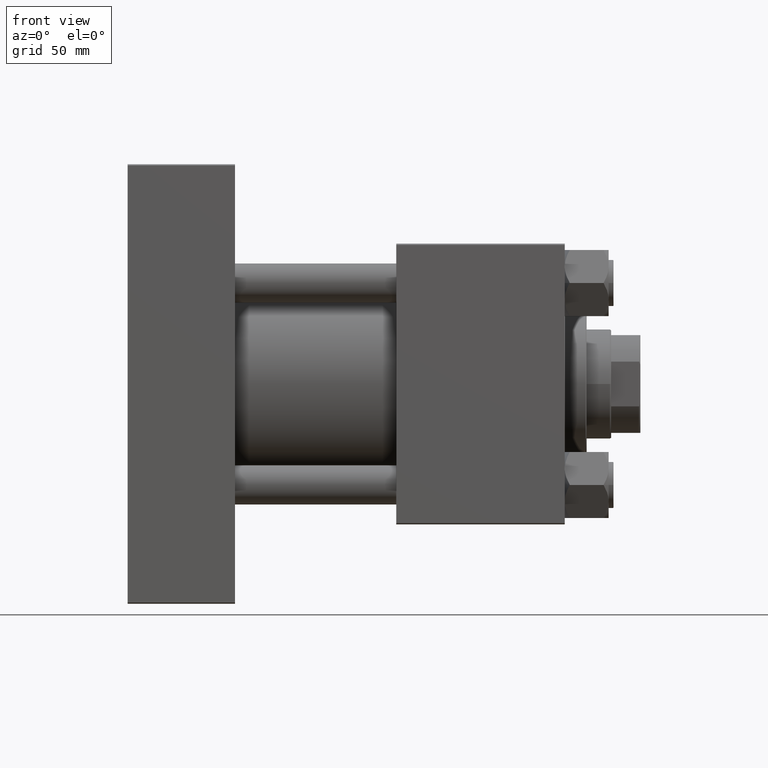
[diagram: clean part render]
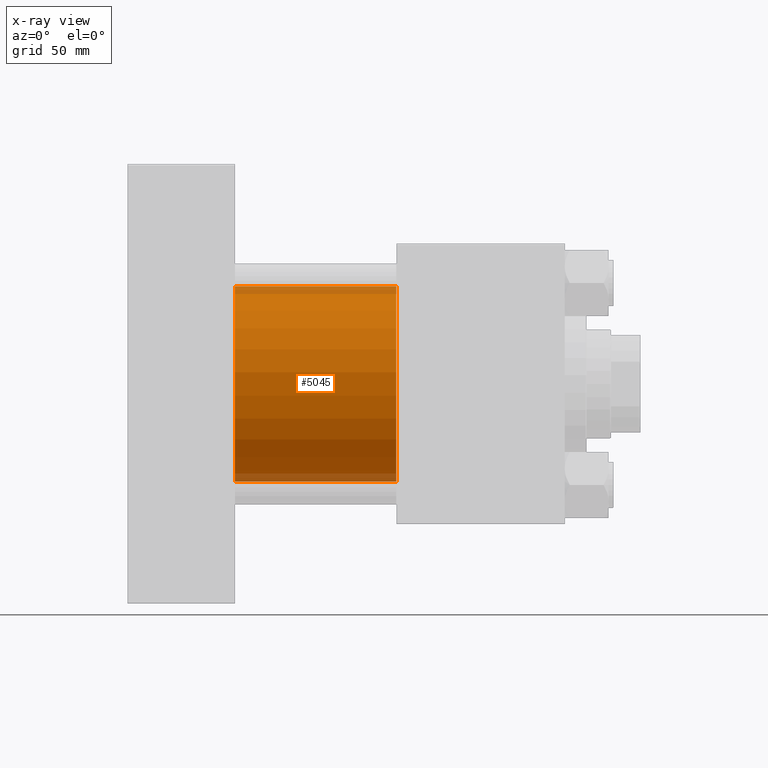
[diagram: x-ray — body ghosted, one internal face saturated and labeled with its STEP entity id]
A machine part, front view, then the same camera in x-ray: the body is ghosted and one INTERNAL B-rep face — a face not visible from any outside direction — is saturated and labeled: STEP entity #5045.
In plain terms, the highlighted cylindrical surface (partial cylindrical patch) has radius 40 mm, axis along (-1, -0, -0).
Its self-contained STEP definition (entity closure, byte-faithful):
#2043 = EDGE_LOOP ( 'NONE', ( #7346, #10520, #28986, #3269 ) ) ;
#3269 = ORIENTED_EDGE ( 'NONE', *, *, #7384, .F. ) ;
#5045 = ADVANCED_FACE ( 'NONE', ( #17758 ), #10875, .F. ) ;
#5901 = AXIS2_PLACEMENT_3D ( 'NONE', #18307, #49164, #22143 ) ;
#7346 = ORIENTED_EDGE ( 'NONE', *, *, #25135, .T. ) ;
#7384 = EDGE_CURVE ( 'NONE', #22663, #33675, #31868, .T. ) ;
#9400 = CARTESIAN_POINT ( 'NONE',  ( 110.0000000000000000, 2.296501982624201990E-15, -40.00000000000000000 ) ) ;
#10520 = ORIENTED_EDGE ( 'NONE', *, *, #14693, .T. ) ;
#10875 = CYLINDRICAL_SURFACE ( 'NONE', #22177, 40.00000000000000000 ) ;
#11992 = DIRECTION ( 'NONE',  ( -1.000000000000000000, -0.000000000000000000, -0.000000000000000000 ) ) ;
#12260 = EDGE_CURVE ( 'NONE', #33675, #20119, #30862, .T. ) ;
#13929 = CARTESIAN_POINT ( 'NONE',  ( 110.0000000000000000, -2.602085213965210642E-15, 0.000000000000000000 ) ) ;
#14288 = CARTESIAN_POINT ( 'NONE',  ( 110.0000000000000000, -2.602085213965210642E-15, 40.00000000000000000 ) ) ;
#14693 = EDGE_CURVE ( 'NONE', #48564, #20119, #21436, .T. ) ;
#17758 = FACE_OUTER_BOUND ( 'NONE', #2043, .T. ) ;
#18307 = CARTESIAN_POINT ( 'NONE',  ( 110.0000000000000000, -2.602085213965210642E-15, 0.000000000000000000 ) ) ;
#20119 = VERTEX_POINT ( 'NONE', #43162 ) ;
#21436 = LINE ( 'NONE', #40557, #27682 ) ;
#22143 = DIRECTION ( 'NONE',  ( 0.000000000000000000, 0.000000000000000000, -1.000000000000000000 ) ) ;
#22177 = AXIS2_PLACEMENT_3D ( 'NONE', #13929, #26436, #22603 ) ;
#22603 = DIRECTION ( 'NONE',  ( 0.000000000000000000, 0.000000000000000000, 1.000000000000000000 ) ) ;
#22663 = VERTEX_POINT ( 'NONE', #14288 ) ;
#25135 = EDGE_CURVE ( 'NONE', #22663, #48564, #30349, .T. ) ;
#26436 = DIRECTION ( 'NONE',  ( -1.000000000000000000, -0.000000000000000000, -0.000000000000000000 ) ) ;
#27316 = CARTESIAN_POINT ( 'NONE',  ( 110.0000000000000000, -2.602085213965210642E-15, 40.00000000000000000 ) ) ;
#27682 = VECTOR ( 'NONE', #44888, 1000.000000000000000 ) ;
#28986 = ORIENTED_EDGE ( 'NONE', *, *, #12260, .F. ) ;
#29014 = CARTESIAN_POINT ( 'NONE',  ( 44.00000000000000000, -2.602085213965210642E-15, 40.00000000000000000 ) ) ;
#30349 = CIRCLE ( 'NONE', #5901, 40.00000000000000000 ) ;
#30862 = CIRCLE ( 'NONE', #46319, 40.00000000000000000 ) ;
#31868 = LINE ( 'NONE', #27316, #47450 ) ;
#33675 = VERTEX_POINT ( 'NONE', #29014 ) ;
#40557 = CARTESIAN_POINT ( 'NONE',  ( 110.0000000000000000, 2.296501982624201990E-15, -40.00000000000000000 ) ) ;
#42517 = DIRECTION ( 'NONE',  ( 0.000000000000000000, 0.000000000000000000, -1.000000000000000000 ) ) ;
#42759 = DIRECTION ( 'NONE',  ( 1.000000000000000000, 0.000000000000000000, 0.000000000000000000 ) ) ;
#43162 = CARTESIAN_POINT ( 'NONE',  ( 44.00000000000000000, 2.296501982624201990E-15, -40.00000000000000000 ) ) ;
#43251 = CARTESIAN_POINT ( 'NONE',  ( 44.00000000000000000, -2.602085213965210642E-15, 0.000000000000000000 ) ) ;
#44888 = DIRECTION ( 'NONE',  ( -1.000000000000000000, -0.000000000000000000, -0.000000000000000000 ) ) ;
#46319 = AXIS2_PLACEMENT_3D ( 'NONE', #43251, #42759, #42517 ) ;
#47450 = VECTOR ( 'NONE', #11992, 1000.000000000000000 ) ;
#48564 = VERTEX_POINT ( 'NONE', #9400 ) ;
#49164 = DIRECTION ( 'NONE',  ( 1.000000000000000000, 0.000000000000000000, 0.000000000000000000 ) ) ;